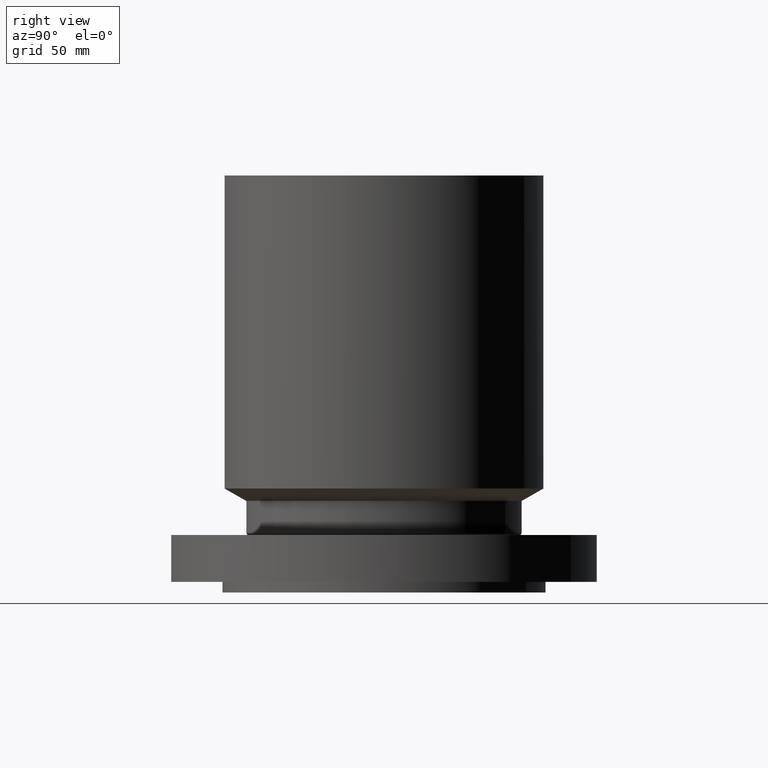
[diagram: clean part render]
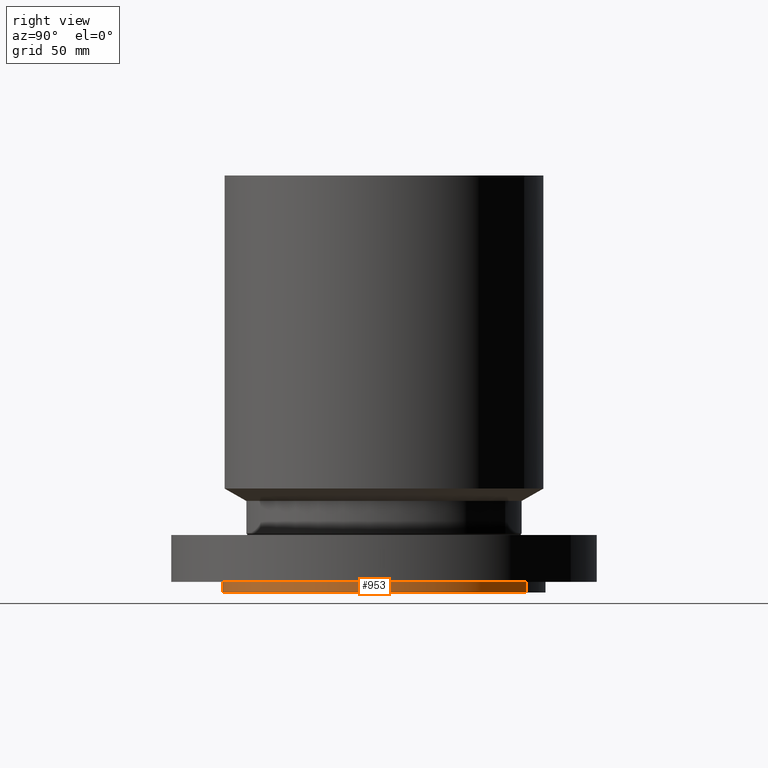
[diagram: same view with one face highlighted and labeled with its STEP entity id]
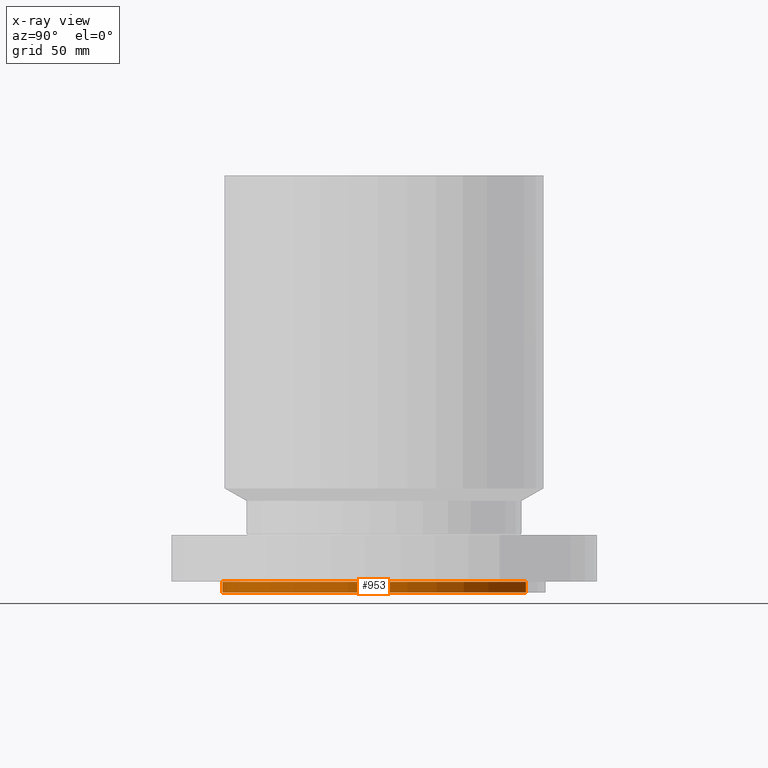
[diagram: x-ray of the same camera — body ghosted, the highlighted face saturated]
A machine part, right view. The second image highlights one B-rep face of the part: STEP entity #953.
The next image is the same camera in x-ray: the body ghosted, the highlighted face saturated — about 0% of this face is hidden behind the body in this view.
In plain terms, the highlighted cylindrical surface (partial cylindrical patch) has radius 120.65 mm, axis along (0, 0, -1).
Its self-contained STEP definition (entity closure, byte-faithful):
#109=AXIS2_PLACEMENT_3D('Circle Axis2P3D',#107,#108,$) ;
#913=AXIS2_PLACEMENT_3D('Circle Axis2P3D',#911,#912,$) ;
#928=AXIS2_PLACEMENT_3D('Cylinder Axis2P3D',#925,#926,#927) ;
#107=CARTESIAN_POINT('Axis2P3D Location',(0.,0.,0.)) ;
#111=CARTESIAN_POINT('Vertex',(2.27727130838,4.168517169,1.1189649382E-015)) ;
#113=CARTESIAN_POINT('Vertex',(-2.27727130838,-4.168517169,1.1189649382E-015)) ;
#906=CARTESIAN_POINT('Vertex',(-2.27727130838,-4.168517169,-0.313000000001)) ;
#908=CARTESIAN_POINT('Vertex',(2.27727130838,4.168517169,-0.313000000001)) ;
#911=CARTESIAN_POINT('Axis2P3D Location',(0.,0.,-0.313000000001)) ;
#925=CARTESIAN_POINT('Axis2P3D Location',(0.,0.,5.81225000002)) ;
#930=CARTESIAN_POINT('Line Origine',(-2.27727130838,-4.168517169,-0.156500000001)) ;
#935=CARTESIAN_POINT('Line Origine',(2.27727130838,4.168517169,-0.156500000001)) ;
#108=DIRECTION('Axis2P3D Direction',(0.,0.,-0.0393700787402)) ;
#912=DIRECTION('Axis2P3D Direction',(0.,0.,-0.0393700787402)) ;
#926=DIRECTION('Axis2P3D Direction',(0.,0.,-0.0393700787402)) ;
#927=DIRECTION('Axis2P3D XDirection',(0.0188750212049,0.0345504945626,0.)) ;
#931=DIRECTION('Vector Direction',(0.,0.,-0.0393700787402)) ;
#936=DIRECTION('Vector Direction',(0.,0.,-0.0393700787402)) ;
#932=VECTOR('Line Direction',#931,0.0393700787402) ;
#937=VECTOR('Line Direction',#936,0.0393700787402) ;
#948=ORIENTED_EDGE('',*,*,#915,.F.) ;
#949=ORIENTED_EDGE('',*,*,#939,.T.) ;
#950=ORIENTED_EDGE('',*,*,#115,.T.) ;
#951=ORIENTED_EDGE('',*,*,#934,.F.) ;
#953=ADVANCED_FACE('PartBody',(#952),#929,.T.) ;
#110=CIRCLE('generated circle',#109,4.75000000002) ;
#914=CIRCLE('generated circle',#913,4.75000000002) ;
#929=CYLINDRICAL_SURFACE('generated cylinder',#928,4.75000000002) ;
#115=EDGE_CURVE('',#112,#114,#110,.T.) ;
#915=EDGE_CURVE('',#909,#907,#914,.T.) ;
#934=EDGE_CURVE('',#907,#114,#933,.F.) ;
#939=EDGE_CURVE('',#909,#112,#938,.F.) ;
#947=EDGE_LOOP('',(#948,#949,#950,#951)) ;
#952=FACE_OUTER_BOUND('',#947,.T.) ;
#933=LINE('Line',#930,#932) ;
#938=LINE('Line',#935,#937) ;
#112=VERTEX_POINT('',#111) ;
#114=VERTEX_POINT('',#113) ;
#907=VERTEX_POINT('',#906) ;
#909=VERTEX_POINT('',#908) ;